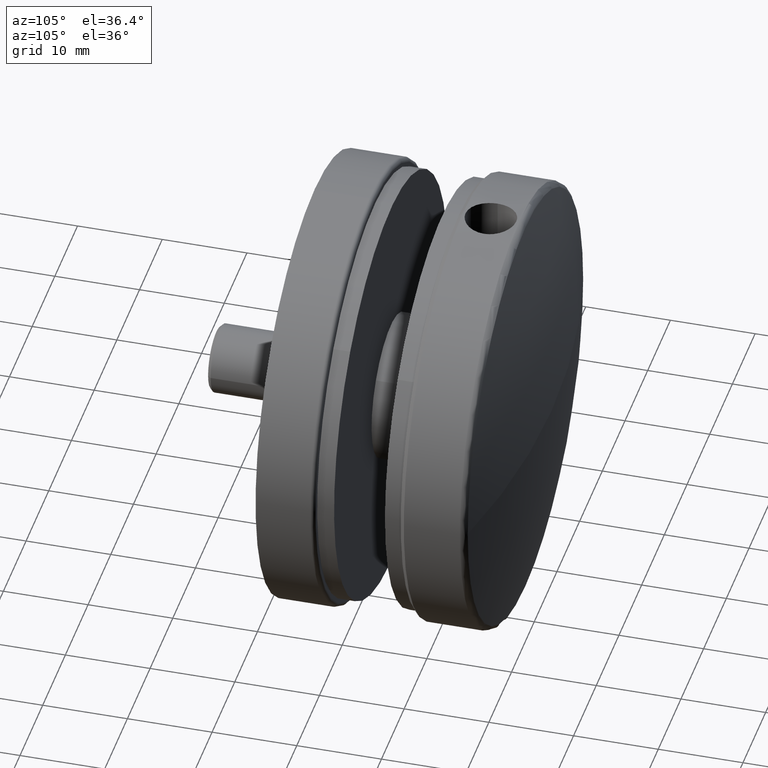
[diagram: clean part render]
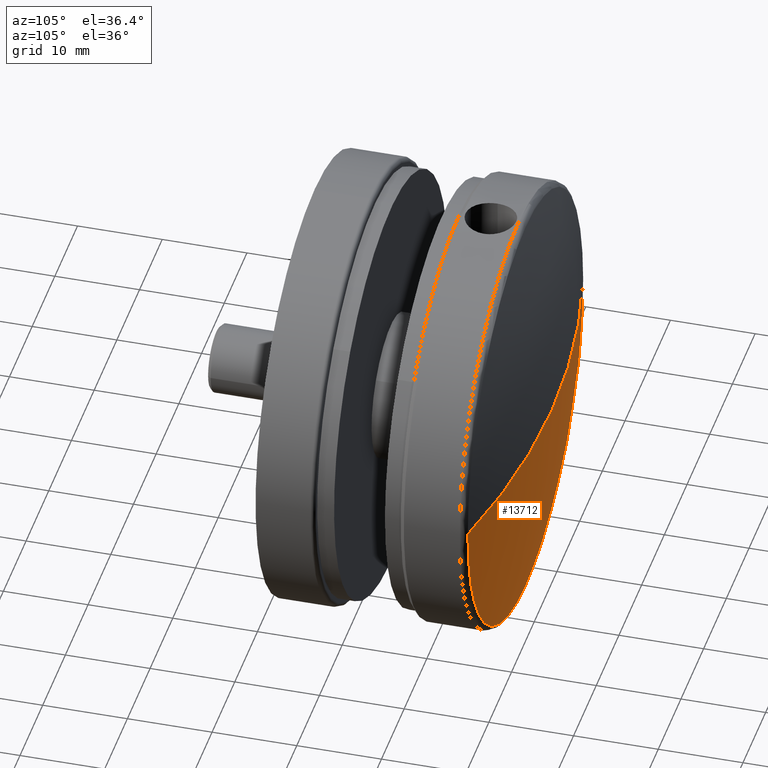
[diagram: same view with one face highlighted and labeled with its STEP entity id]
A machine part, auxiliary view. The second image highlights one B-rep face of the part: STEP entity #13712.
In plain terms, the highlighted spherical surface has radius 105.67 mm.
Its self-contained STEP definition (entity closure, byte-faithful):
#720 = AXIS2_PLACEMENT_3D ( 'NONE', #1399, #9320, #12899 ) ;
#736 = AXIS2_PLACEMENT_3D ( 'NONE', #5714, #11365, #11511 ) ;
#1312 = CARTESIAN_POINT ( 'NONE',  ( 26.00000000000000400, 7.903793675071546500, 0.0000000000000000000 ) ) ;
#1399 = CARTESIAN_POINT ( 'NONE',  ( 26.00000000000000400, -94.67000000000000200, 0.0000000000000000000 ) ) ;
#1487 = CIRCLE ( 'NONE', #13367, 25.39223800896348100 ) ;
#1776 = ORIENTED_EDGE ( 'NONE', *, *, #6237, .F. ) ;
#2227 = DIRECTION ( 'NONE',  ( -0.0000000000000000000, 0.0000000000000000000, 1.000000000000000000 ) ) ;
#2439 = CARTESIAN_POINT ( 'NONE',  ( 26.00000000000000400, -94.67000000000000200, 0.0000000000000000000 ) ) ;
#2514 = CARTESIAN_POINT ( 'NONE',  ( 26.00000000000000400, -94.67000000000000200, 0.0000000000000000000 ) ) ;
#2563 = DIRECTION ( 'NONE',  ( -1.000000000000000000, 0.0000000000000000000, 0.0000000000000000000 ) ) ;
#2623 = EDGE_CURVE ( 'NONE', #13291, #7315, #10962, .T. ) ;
#3796 = DIRECTION ( 'NONE',  ( -0.0000000000000000000, -0.0000000000000000000, -1.000000000000000000 ) ) ;
#3878 = VERTEX_POINT ( 'NONE', #4262 ) ;
#4262 = CARTESIAN_POINT ( 'NONE',  ( 26.00000000000000000, 7.903793675071546500, -25.39223800896348100 ) ) ;
#4895 = VERTEX_POINT ( 'NONE', #14396 ) ;
#5714 = CARTESIAN_POINT ( 'NONE',  ( 26.00000000000000400, 7.903793675071546500, 0.0000000000000000000 ) ) ;
#5788 = EDGE_CURVE ( 'NONE', #3878, #4895, #12008, .T. ) ;
#6237 = EDGE_CURVE ( 'NONE', #13291, #4895, #8232, .T. ) ;
#7315 = VERTEX_POINT ( 'NONE', #13552 ) ;
#7407 = EDGE_CURVE ( 'NONE', #7315, #3878, #1487, .T. ) ;
#7410 = AXIS2_PLACEMENT_3D ( 'NONE', #2439, #2227, #13736 ) ;
#8232 = CIRCLE ( 'NONE', #7410, 105.6699999999999900 ) ;
#9147 = ORIENTED_EDGE ( 'NONE', *, *, #5788, .T. ) ;
#9320 = DIRECTION ( 'NONE',  ( -1.224646799147353200E-016, 0.0000000000000000000, -1.000000000000000000 ) ) ;
#9370 = FACE_OUTER_BOUND ( 'NONE', #14103, .T. ) ;
#10043 = ORIENTED_EDGE ( 'NONE', *, *, #2623, .T. ) ;
#10580 = ORIENTED_EDGE ( 'NONE', *, *, #7407, .T. ) ;
#10962 = CIRCLE ( 'NONE', #720, 105.6699999999999900 ) ;
#11365 = DIRECTION ( 'NONE',  ( 0.0000000000000000000, 1.000000000000000000, 0.0000000000000000000 ) ) ;
#11468 = AXIS2_PLACEMENT_3D ( 'NONE', #2514, #3796, #2563 ) ;
#11511 = DIRECTION ( 'NONE',  ( 0.0000000000000000000, 0.0000000000000000000, -1.000000000000000000 ) ) ;
#12008 = CIRCLE ( 'NONE', #736, 25.39223800896348100 ) ;
#12618 = SPHERICAL_SURFACE ( 'NONE', #11468, 105.6699999999999900 ) ;
#12789 = DIRECTION ( 'NONE',  ( 0.0000000000000000000, 1.000000000000000000, 0.0000000000000000000 ) ) ;
#12899 = DIRECTION ( 'NONE',  ( -1.000000000000000000, 0.0000000000000000000, 1.224646799147353200E-016 ) ) ;
#12928 = DIRECTION ( 'NONE',  ( 0.0000000000000000000, 0.0000000000000000000, -1.000000000000000000 ) ) ;
#13021 = CARTESIAN_POINT ( 'NONE',  ( 25.99999999999999600, 10.99999999999998200, 0.0000000000000000000 ) ) ;
#13291 = VERTEX_POINT ( 'NONE', #13021 ) ;
#13367 = AXIS2_PLACEMENT_3D ( 'NONE', #1312, #12789, #12928 ) ;
#13552 = CARTESIAN_POINT ( 'NONE',  ( 51.39223800896347400, 7.903793675071553600, -3.109652300086488700E-015 ) ) ;
#13712 = ADVANCED_FACE ( 'NONE', ( #9370 ), #12618, .T. ) ;
#13736 = DIRECTION ( 'NONE',  ( 1.000000000000000000, 0.0000000000000000000, 0.0000000000000000000 ) ) ;
#14103 = EDGE_LOOP ( 'NONE', ( #1776, #10043, #10580, #9147 ) ) ;
#14396 = CARTESIAN_POINT ( 'NONE',  ( 0.6077619910365237300, 7.903793675071553600, 0.0000000000000000000 ) ) ;